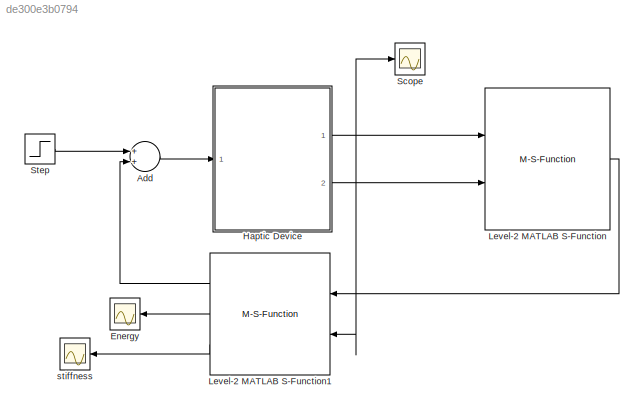
MODEL slx_de300e3b0794
KIND model
CONFIG AbsTol = auto
CONFIG FixedStep = auto
CONFIG MaxStep = auto
CONFIG MinStep = auto
CONFIG RelTol = 1e-3
CONFIG SampleTimeConstraint = Unconstrained
CONFIG Solver = ode45
CONFIG SolverMode = Auto
CONFIG SolverName = ode45
CONFIG StartTime = 0.0
CONFIG StopTime = 15
BLOCK [Sum] Add
  InputSameDT = off
  OutDataTypeStr = Inherit: Inherit via internal rule
  Ports = [2, 1]
  SaturateOnIntegerOverflow = off
BLOCK [Scope] Energy
  Ports = [1]
  ScopeSpecificationString = Simulink.scopes.TimeScopeBlockCfg('CurrentConfiguration', extmgr.ConfigurationSet(extmgr.Configuration('Core','General UI',true),extmgr.Configuration('Core','Source UI',true),extmgr.Configuration('Sources','WiredSimulink',true,'DataLoggingVariableName','ScopeData4'),extmgr.Configuration('Visuals','Time Domain',true,'SerializedDisplays',{struct('MinYLimReal','-0.07568','MaxYLimReal','0.63625','YLab...<+1485ch>
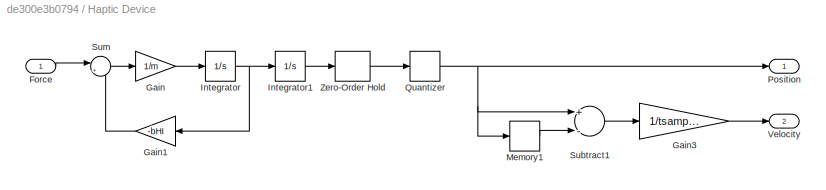
BLOCK [SubSystem] Haptic Device
  Ports = [1, 2]
  RequestExecContextInheritance = off
  Variant = off
BLOCK [Inport] Haptic Device/Force
  IconDisplay = Port number
BLOCK [Gain] Haptic Device/Gain
  Gain = 1/m
  OutDataTypeStr = Inherit: Inherit via internal rule
  ParamDataTypeStr = Inherit: Inherit via internal rule
  SaturateOnIntegerOverflow = off
BLOCK [Gain] Haptic Device/Gain1
  Gain = -bHI
  OutDataTypeStr = Inherit: Inherit via internal rule
  ParamDataTypeStr = Inherit: Inherit via internal rule
  SaturateOnIntegerOverflow = off
BLOCK [Gain] Haptic Device/Gain3
  Gain = 1/tsampling
  OutDataTypeStr = Inherit: Inherit via internal rule
  ParamDataTypeStr = Inherit: Inherit via internal rule
  SaturateOnIntegerOverflow = off
BLOCK [Integrator] Haptic Device/Integrator
  InitialCondition = x_dot0
  Ports = [1, 1]
BLOCK [Integrator] Haptic Device/Integrator1
  InitialCondition = x0
  Ports = [1, 1]
BLOCK [Memory] Haptic Device/Memory1
  X0 = x0
BLOCK [Outport] Haptic Device/Position
  IconDisplay = Port number
BLOCK [Quantizer] Haptic Device/Quantizer
  QuantizationInterval = 0.00002
BLOCK [Sum] Haptic Device/Subtract1
  InputSameDT = off
  Inputs = +-
  OutDataTypeStr = Inherit: Inherit via internal rule
  Ports = [2, 1]
  SaturateOnIntegerOverflow = off
BLOCK [Sum] Haptic Device/Sum
  IconShape = round
  InputSameDT = off
  Inputs = |++
  OutDataTypeStr = Inherit: Inherit via internal rule
  Ports = [2, 1]
  SaturateOnIntegerOverflow = off
BLOCK [Outport] Haptic Device/Velocity
  IconDisplay = Port number
  Port = 2
BLOCK [ZeroOrderHold] Haptic Device/Zero-Order Hold
  SampleTime = tsampling
BLOCK [M-S-Function] Level-2 MATLAB S-Function
  FunctionName = VirtualEnvironment0
  Parameters = kWall, bWall, nWall, xWall, tsampling
  Ports = [2, 1]
BLOCK [M-S-Function] Level-2 MATLAB S-Function1
  FunctionName = popc
  Parameters = kWall, bWall, nWall, xWall, tsampling, x0
  Ports = [2, 3]
BLOCK [Scope] Scope
  Ports = [1]
  ScopeSpecificationString = Simulink.scopes.TimeScopeBlockCfg('CurrentConfiguration', extmgr.ConfigurationSet(extmgr.Configuration('Core','General UI',true),extmgr.Configuration('Core','Source UI',true),extmgr.Configuration('Sources','WiredSimulink',true),extmgr.Configuration('Visuals','Time Domain',true,'SerializedDisplays',{struct('MinYLimReal','0.07179','MaxYLimReal','0.14758','YLabelReal','','MinYLimMag','0.07179','MaxYL...<+1431ch>
BLOCK [Step] Step
  After = -10
  SampleTime = 0
  Time = 0.35
BLOCK [Scope] stiffness
  Ports = [1]
  ScopeSpecificationString = Simulink.scopes.TimeScopeBlockCfg('CurrentConfiguration', extmgr.ConfigurationSet(extmgr.Configuration('Core','General UI',true),extmgr.Configuration('Core','Source UI',true),extmgr.Configuration('Sources','WiredSimulink',true,'DataLoggingVariableName','ScopeData1'),extmgr.Configuration('Visuals','Time Domain',true,'SerializedDisplays',{struct('MinYLimReal','-8280.35299','MaxYLimReal','18517.52374...<+1511ch>
LINE Add:1 -> Haptic Device:1
LINE Haptic Device/Force:1 -> Haptic Device/Sum:1
LINE Haptic Device/Gain1:1 -> Haptic Device/Sum:2
LINE Haptic Device/Gain3:1 -> Haptic Device/Velocity:1
LINE Haptic Device/Gain:1 -> Haptic Device/Integrator:1
LINE Haptic Device/Integrator1:1 -> Haptic Device/Zero-Order Hold:1
NET Haptic Device/Integrator:1 -> Haptic Device/Gain1:1, Haptic Device/Integrator1:1
LINE Haptic Device/Memory1:1 -> Haptic Device/Subtract1:2
NET Haptic Device/Quantizer:1 -> Haptic Device/Memory1:1, Haptic Device/Position:1, Haptic Device/Subtract1:1
LINE Haptic Device/Subtract1:1 -> Haptic Device/Gain3:1
LINE Haptic Device/Sum:1 -> Haptic Device/Gain:1
LINE Haptic Device/Zero-Order Hold:1 -> Haptic Device/Quantizer:1
NET Haptic Device:1 -> Level-2 MATLAB S-Function1:2, Level-2 MATLAB S-Function:1, Scope:1
LINE Haptic Device:2 -> Level-2 MATLAB S-Function:2
LINE Level-2 MATLAB S-Function1:1 -> Add:2
LINE Level-2 MATLAB S-Function1:2 -> Energy:1
LINE Level-2 MATLAB S-Function1:3 -> stiffness:1
LINE Level-2 MATLAB S-Function:1 -> Level-2 MATLAB S-Function1:1
LINE Step:1 -> Add:1
note: NET lines group one-source signal fan-out (src -> all destinations, sorted); 1:1 wires keep LINE
